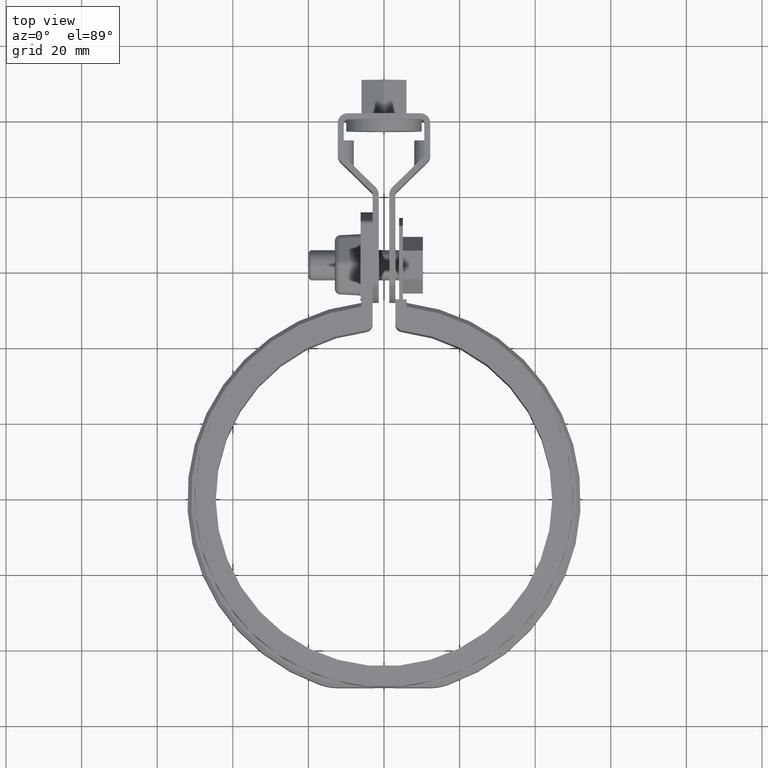
[diagram: clean part render]
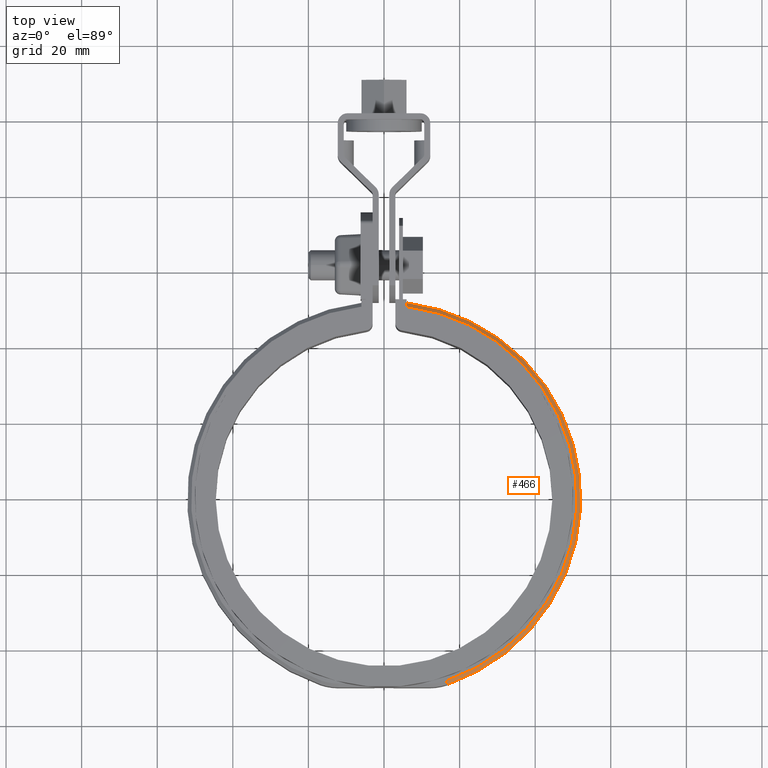
[diagram: same view with one face highlighted and labeled with its STEP entity id]
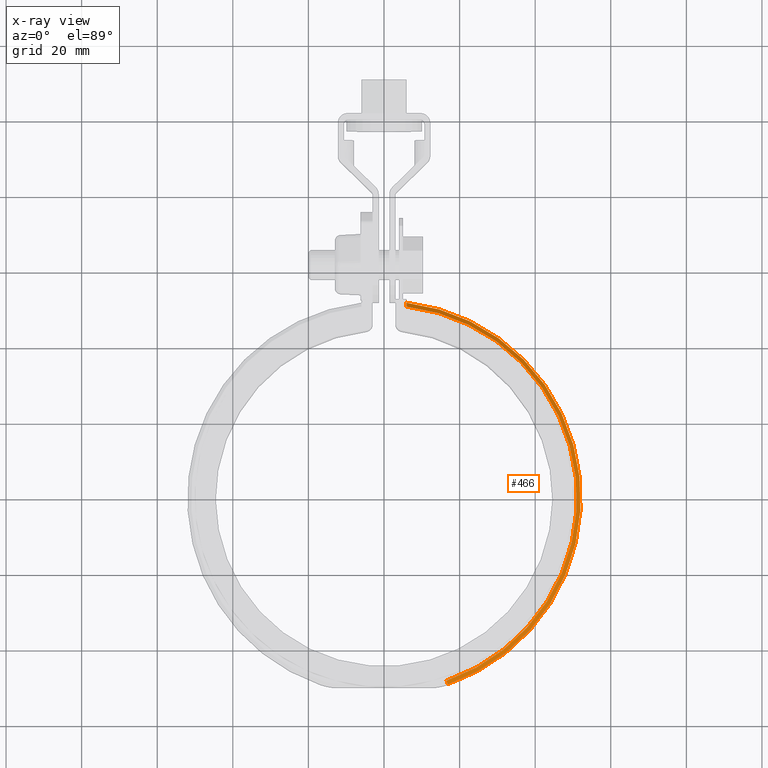
[diagram: x-ray of the same camera — body ghosted, the highlighted face saturated]
A machine part, top view. The second image highlights one B-rep face of the part: STEP entity #466.
The next image is the same camera in x-ray: the body ghosted, the highlighted face saturated — about 0% of this face is hidden behind the body in this view.
In plain terms, the highlighted conical surface has half-angle 45 deg.
Its self-contained STEP definition (entity closure, byte-faithful):
#466 = ADVANCED_FACE( '', ( #910 ), #911, .T. );
#910 = FACE_OUTER_BOUND( '', #2104, .T. );
#911 = CONICAL_SURFACE( '', #2105, 52.0500000000000, 0.785398163397452 );
#2104 = EDGE_LOOP( '', ( #4304, #4305, #4306, #4307 ) );
#2105 = AXIS2_PLACEMENT_3D( '', #4308, #4309, #4310 );
#4304 = ORIENTED_EDGE( '', *, *, #6381, .F. );
#4305 = ORIENTED_EDGE( '', *, *, #6488, .F. );
#4306 = ORIENTED_EDGE( '', *, *, #6442, .F. );
#4307 = ORIENTED_EDGE( '', *, *, #6523, .F. );
#4308 = CARTESIAN_POINT( '', ( 0.000000000000000, -1.38777878078145E-014, 7.50000000000000 ) );
#4309 = DIRECTION( '', ( 0.000000000000000, 0.000000000000000, -1.00000000000000 ) );
#4310 = DIRECTION( '', ( -1.00000000000000, 0.000000000000000, 0.000000000000000 ) );
#6381 = EDGE_CURVE( '', #7432, #7434, #7435, .T. );
#6442 = EDGE_CURVE( '', #7397, #7536, #7537, .T. );
#6488 = EDGE_CURVE( '', #7536, #7432, #7613, .T. );
#6523 = EDGE_CURVE( '', #7434, #7397, #7660, .T. );
#7397 = VERTEX_POINT( '', #10436 );
#7432 = VERTEX_POINT( '', #10486 );
#7434 = VERTEX_POINT( '', #10489 );
#7435 = B_SPLINE_CURVE_WITH_KNOTS( '', 3, ( #10490, #10491, #10492, #10493 ), .UNSPECIFIED., .F., .F., ( 4, 4 ), ( 707.171904482644, 707.173331790001 ), .UNSPECIFIED. );
#7536 = VERTEX_POINT( '', #10707 );
#7537 = LINE( '', #10708, #10709 );
#7613 = CIRCLE( '', #10936, 51.0500000000000 );
#7660 = CIRCLE( '', #11054, 52.0500000000000 );
#10436 = CARTESIAN_POINT( '', ( 16.8700026854753, -49.2402834008097, 7.50000000000000 ) );
#10486 = CARTESIAN_POINT( '', ( 6.00000000000000, 50.6961783569531, 8.50000000000000 ) );
#10489 = CARTESIAN_POINT( '', ( 6.00000000000000, 51.7030221553827, 7.50000000000000 ) );
#10490 = CARTESIAN_POINT( '', ( 6.00000000000000, 50.6961783569616, 8.49999999999156 ) );
#10491 = CARTESIAN_POINT( '', ( 6.00000000000000, 51.0318154254936, 8.16668919314525 ) );
#10492 = CARTESIAN_POINT( '', ( 6.00000000000000, 51.3674295903718, 7.83335542409109 ) );
#10493 = CARTESIAN_POINT( '', ( 6.00000000000000, 51.7030221554084, 7.49999999997449 ) );
#10707 = CARTESIAN_POINT( '', ( 16.5458912025651, -48.2942645074224, 8.50000000000000 ) );
#10708 = CARTESIAN_POINT( '', ( 16.8700026854753, -49.2402834008097, 7.50000000000000 ) );
#10709 = VECTOR( '', #12828, 1000.00000000000 );
#10936 = AXIS2_PLACEMENT_3D( '', #12871, #12872, #12873 );
#11054 = AXIS2_PLACEMENT_3D( '', #12926, #12927, #12928 );
#12828 = DIRECTION( '', ( -0.229181427426222, 0.668936374644766, 0.707106781186545 ) );
#12871 = CARTESIAN_POINT( '', ( 0.000000000000000, -1.38777878078145E-014, 8.50000000000000 ) );
#12872 = DIRECTION( '', ( 0.000000000000000, 0.000000000000000, 1.00000000000000 ) );
#12873 = DIRECTION( '', ( 1.00000000000000, 0.000000000000000, 0.000000000000000 ) );
#12926 = CARTESIAN_POINT( '', ( 0.000000000000000, -1.38777878078145E-014, 7.50000000000000 ) );
#12927 = DIRECTION( '', ( 0.000000000000000, 0.000000000000000, -1.00000000000000 ) );
#12928 = DIRECTION( '', ( -1.00000000000000, 0.000000000000000, 0.000000000000000 ) );